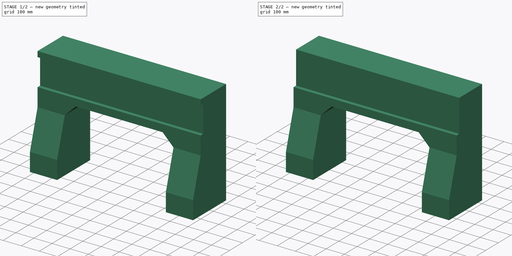
[diagram: build sequence overview — one tinted view per stage of 2, left to right]
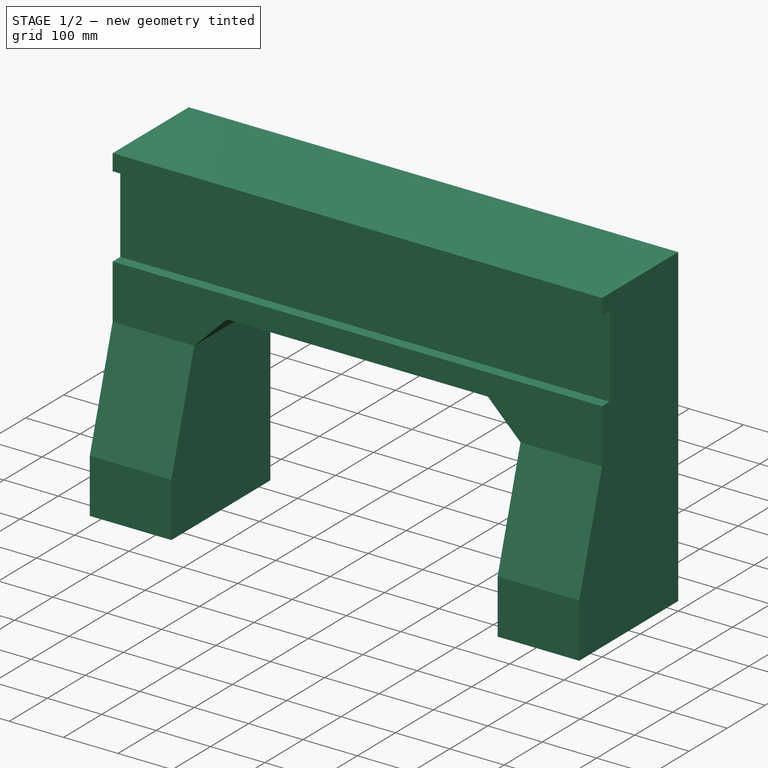
[diagram: stage 1 of 2 — iso view after this stage's code; geometry added in this stage tinted green]
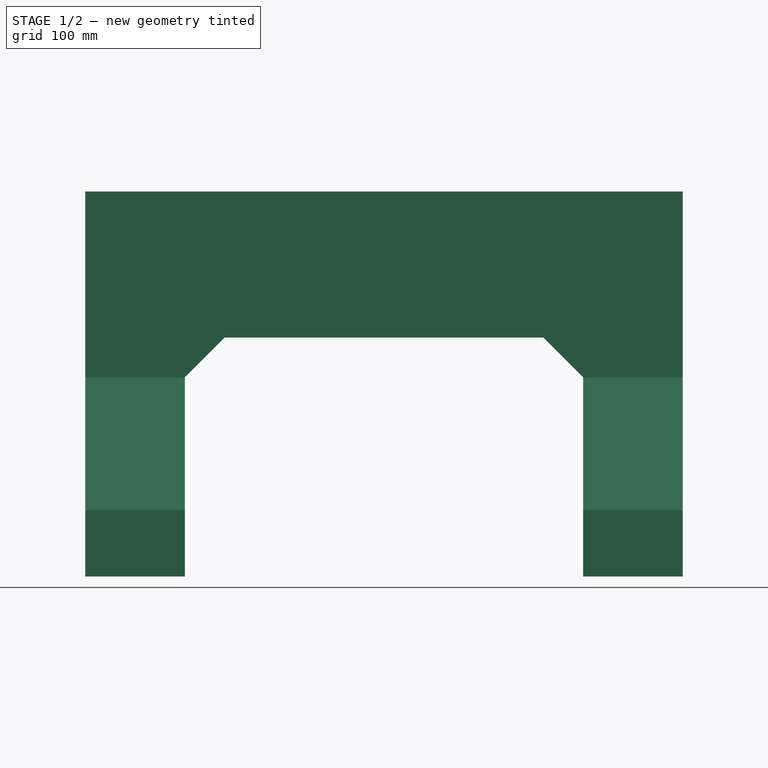
[diagram: stage 1 of 2 — front view after this stage's code; geometry added in this stage tinted green]
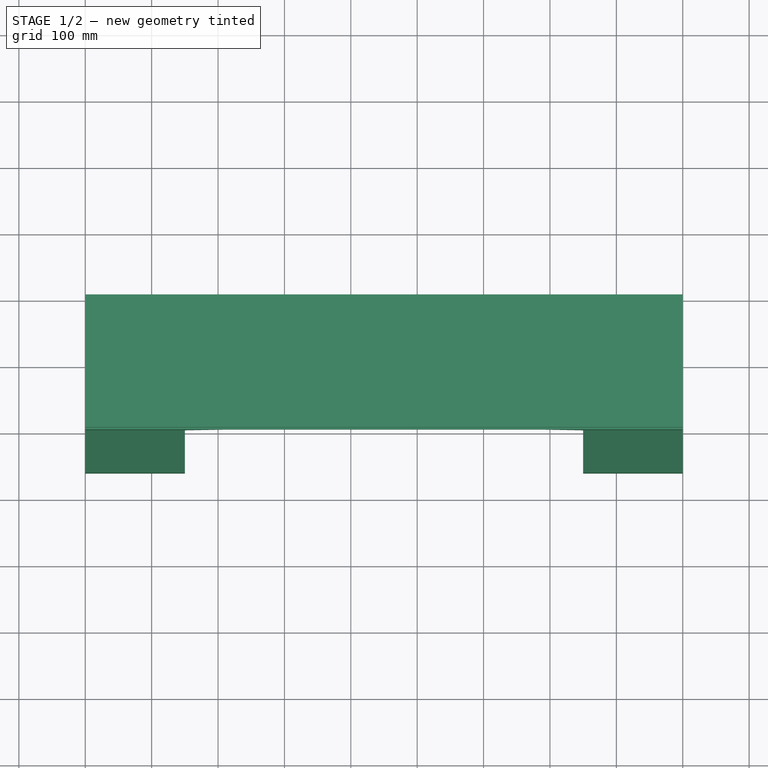
[diagram: stage 1 of 2 — top view after this stage's code; geometry added in this stage tinted green]
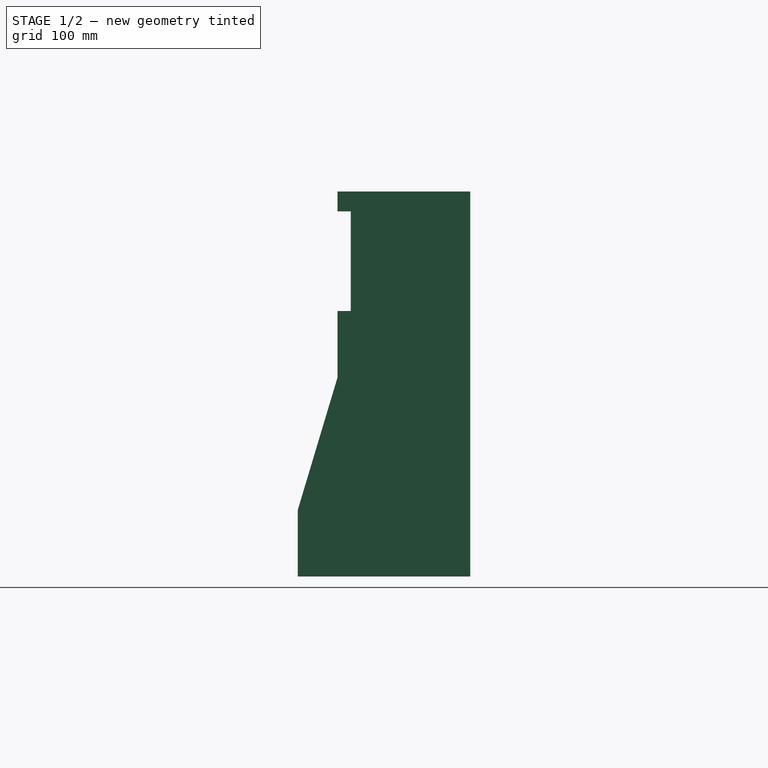
[diagram: stage 1 of 2 — right view after this stage's code; geometry added in this stage tinted green]
FCSTD DOCUMENT  (FreeCAD 1.0R39319 (Git))
Label: gantry
License: All rights reserved
LicenseURL: https://en.wikipedia.org/wiki/All_rights_reserved
objects: Sketcher::SketchObject×3, PartDesign::Pocket×2, PartDesign::Pad×1, PartDesign::Body×1
note: 16 computed .brp shape members not serialized (recipe doc carries the construction recipe); baked Part::Feature solids carry a one-line shape summary decoded from their .brp

FEATURE [Sketcher::SketchObject] Sketch
  ArcFitTolerance = 1e-06
  AttachmentSupport = -> [YZ_Plane]
  FullyConstrained = true
  MakeInternals = false
  MapMode = 5
  Placement = pos=(0,0,0) rot=(0.57735,0.57735,0.57735;2.0944rad)
  sketch-geometry (17):
    g0: LineSegment StartX=0 StartY=0 StartZ=0 EndX=200 EndY=0 EndZ=0
    g1: LineSegment StartX=200 StartY=0 StartZ=0 EndX=200 EndY=100 EndZ=0
    g2: LineSegment StartX=200 StartY=100 StartZ=0 EndX=0 EndY=100 EndZ=0
    g3: LineSegment StartX=0 StartY=100 StartZ=0 EndX=0 EndY=0 EndZ=0
    g4: LineSegment StartX=200 StartY=100 StartZ=0 EndX=200 EndY=250 EndZ=0
    g5: LineSegment StartX=200 StartY=250 StartZ=0 EndX=20 EndY=250 EndZ=0
    g6: LineSegment StartX=20 StartY=250 StartZ=0 EndX=20 EndY=100 EndZ=0
    g7: LineSegment StartX=20 StartY=100 StartZ=0 EndX=200 EndY=100 EndZ=0
    g8: LineSegment StartX=200 StartY=250 StartZ=0 EndX=200 EndY=280 EndZ=0
    g9: LineSegment StartX=200 StartY=280 StartZ=0 EndX=0 EndY=280 EndZ=0
    g10: LineSegment StartX=0 StartY=280 StartZ=0 EndX=0 EndY=250 EndZ=0
    g11: LineSegment StartX=0 StartY=250 StartZ=0 EndX=200 EndY=250 EndZ=0
    g12: LineSegment StartX=0 StartY=0 StartZ=0 EndX=200 EndY=0 EndZ=0
    g13: LineSegment StartX=200 StartY=0 StartZ=0 EndX=200 EndY=-300 EndZ=0
    g14: LineSegment StartX=200 StartY=-300 StartZ=0 EndX=-60 EndY=-300 EndZ=0
    g15: LineSegment StartX=-60 StartY=-300 StartZ=0 EndX=-60 EndY=-200 EndZ=0
    g16: LineSegment StartX=-60 StartY=-200 StartZ=0 EndX=0 EndY=0 EndZ=0
  constraints (46):
    c: Coincident(g0,g1)
    c: Coincident(g1,g2)
    c: Coincident(g2,g3)
    c: Coincident(g3,g0)
    c: Horizontal(g0)
    c: Horizontal(g2)
    c: Vertical(g1)
    c: Vertical(g3)
    c: Distance(g1,g3) = 200
    c: Distance(g0,g2) = 100
    c: Coincident(g0,g-1)
    c: Coincident(g4,g5)
    c: Coincident(g5,g6)
    c: Coincident(g6,g7)
    c: Coincident(g7,g4)
    c: Vertical(g4)
    c: Vertical(g6)
    c: Horizontal(g5)
    c: Horizontal(g7)
    c: Coincident(g4,g1)
    c: Coincident(g8,g9)
    c: Coincident(g9,g10)
    c: Coincident(g10,g11)
    c: Coincident(g11,g8)
    c: Vertical(g8)
    c: Vertical(g10)
    c: Horizontal(g9)
    c: Horizontal(g11)
    c: Coincident(g8,g4)
    c: PointOnObject(g9,g-2)
    c: Distance(g10,g10) = 30
    c: DistanceY(g6,g6) = 150
    c: DistanceX(g10,g5) = 20
    c: Coincident(g12,g0)
    c: Coincident(g12,g0)
    c: Coincident(g13,g0)
    c: Vertical(g13)
    c: Coincident(g14,g13)
    c: Horizontal(g14)
    c: Coincident(g15,g14)
    c: Vertical(g15)
    c: Coincident(g16,g15)
    c: Coincident(g16,g0)
    c: DistanceX(g14,g14) = 260
    c: DistanceY(g15,g15) = 100
    c: DistanceY(g13,g13) = 300
FEATURE [PartDesign::Pad] Pad
  Direction = (1,0,0)
  Length = 900
  Length2 = 10
  Placement = pos=(0,0,0) rot=(1,1,1;2.0944rad)
  Profile = -> Sketch
  ReferenceAxis = -> Sketch [N_Axis]
  Refine = true
  Suppressed = false
  Type = 0
FEATURE [Sketcher::SketchObject] Sketch001
  ArcFitTolerance = 1e-06
  AttachmentSupport = -> [Pad]
  ExternalGeometry = -> [Pad]
  FullyConstrained = false
  MakeInternals = false
  MapMode = 5
  Placement = pos=(0,0,0) rot=(0.57735,0.57735,-0.57735;2.0944rad)
  sketch-geometry (6):
    g0: LineSegment StartX=-1.67e-14 StartY=150 StartZ=0 EndX=494.351 EndY=150 EndZ=0
    g1: LineSegment StartX=494.351 StartY=150 StartZ=0 EndX=494.351 EndY=750 EndZ=0
    g2: LineSegment StartX=494.351 StartY=750 StartZ=0 EndX=5.68e-14 EndY=750 EndZ=0
    g3: LineSegment StartX=-1.67e-14 StartY=150 StartZ=0 EndX=-60 EndY=210 EndZ=0
    g4: LineSegment StartX=4.63e-14 StartY=750 StartZ=0 EndX=-60 EndY=690 EndZ=0
    g5: LineSegment StartX=-60 StartY=690 StartZ=0 EndX=-60 EndY=210 EndZ=0
  constraints (17):
    c: Coincident(g0,g1)
    c: Coincident(g1,g2)
    c: Horizontal(g0)
    c: Horizontal(g2)
    c: Vertical(g1)
    c: PointOnObject(g0,g-3)
    c: DistanceY(g-1,g0) = 150
    c: DistanceY(g2,g-5) = 150
    c: Coincident(g3,g0)
    c: Coincident(g4,g2)
    c: Coincident(g5,g4)
    c: Coincident(g5,g3)
    c: Vertical(g5)
    c: Equal(g3,g4)
    c: DistanceX(g3,g0) = 60
    c: Angle(g-3,g3) = 0.785398
    c: Angle(g5,g4) = 2.35619
FEATURE [PartDesign::Pocket] Pocket
  BaseFeature = -> Pad
  Direction = (0,1,0)
  Length = 49
  Length2 = 5
  Midplane = true
  Placement = pos=(0,0,0) rot=(1,1,1;2.0944rad)
  Profile = -> Sketch001
  ReferenceAxis = -> Sketch001 [N_Axis]
  Refine = true
  Suppressed = false
  Type = 1
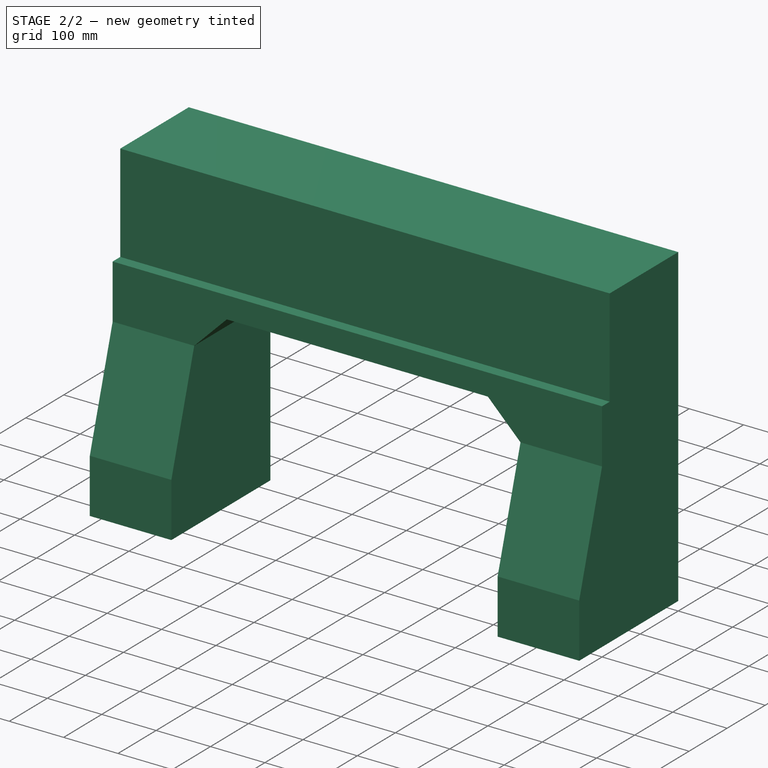
[diagram: stage 2 of 2 — iso view after this stage's code; geometry added in this stage tinted green]
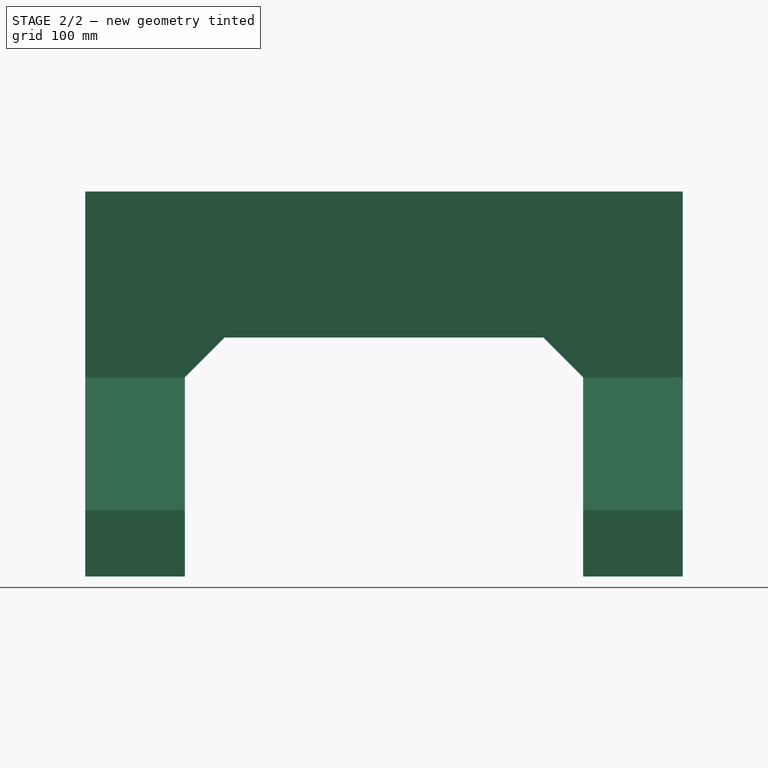
[diagram: stage 2 of 2 — front view after this stage's code; geometry added in this stage tinted green]
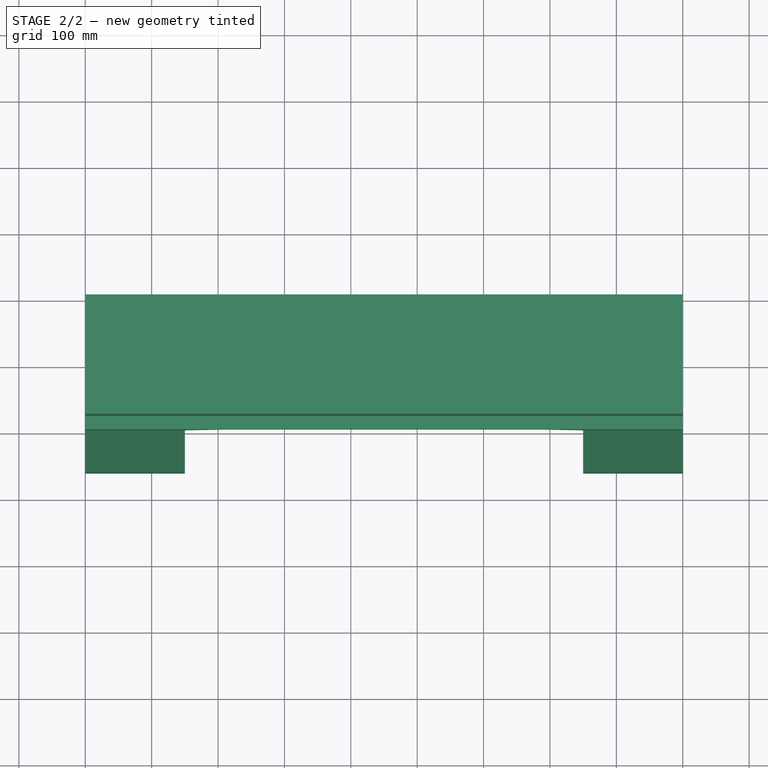
[diagram: stage 2 of 2 — top view after this stage's code; geometry added in this stage tinted green]
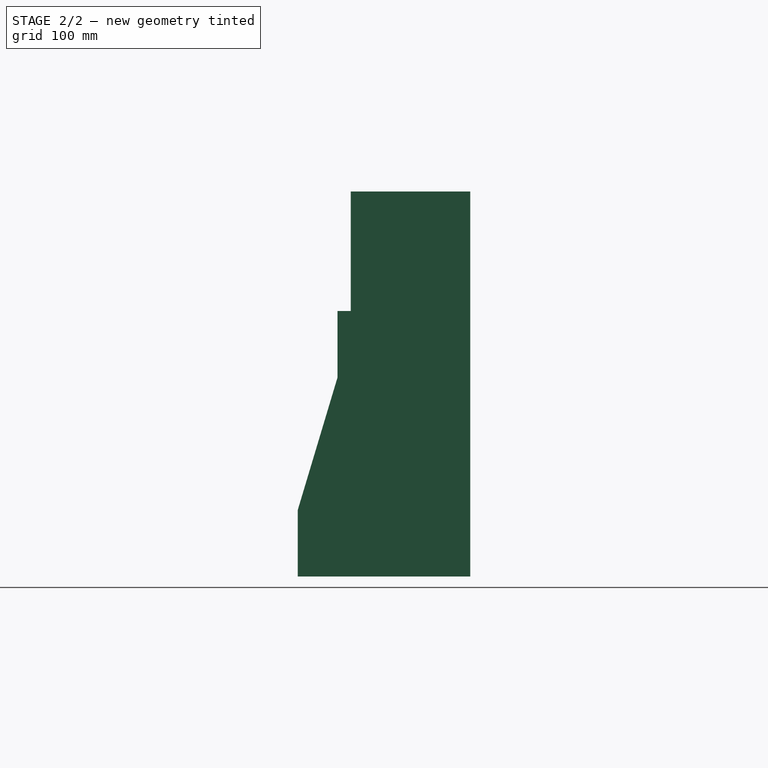
[diagram: stage 2 of 2 — right view after this stage's code; geometry added in this stage tinted green]
FEATURE [Sketcher::SketchObject] Sketch002
  ArcFitTolerance = 1e-06
  AttachmentSupport = -> [Pocket]
  ExternalGeometry = -> [Pocket]
  FullyConstrained = true
  MakeInternals = false
  MapMode = 5
  Placement = pos=(900,-3.997e-13,1.998e-13) rot=(0.57735,0.57735,0.57735;2.0944rad)
  sketch-geometry (4):
    g0: LineSegment StartX=20 StartY=250 StartZ=0 EndX=20 EndY=280 EndZ=0
    g1: LineSegment StartX=20 StartY=280 StartZ=0 EndX=0 EndY=280 EndZ=0
    g2: LineSegment StartX=0 StartY=280 StartZ=0 EndX=0 EndY=250 EndZ=0
    g3: LineSegment StartX=0 StartY=250 StartZ=0 EndX=20 EndY=250 EndZ=0
  constraints (10):
    c: Coincident(g0,g1)
    c: Coincident(g1,g2)
    c: Coincident(g2,g3)
    c: Coincident(g3,g0)
    c: Vertical(g0)
    c: Vertical(g2)
    c: Horizontal(g1)
    c: Horizontal(g3)
    c: Coincident(g0,g-4)
    c: Coincident(g1,g-3)
FEATURE [PartDesign::Pocket] Pocket001
  BaseFeature = -> Pocket
  Direction = (-1,0,0)
  Length = 5
  Length2 = 5
  Placement = pos=(0,0,0) rot=(1,1,1;2.0944rad)
  Profile = -> Sketch002
  ReferenceAxis = -> Sketch002 [N_Axis]
  Refine = true
  Suppressed = false
  Type = 1
FEATURE [PartDesign::Body] Body
  AllowCompound = false
  Group = -> [Sketch,Pad,Sketch001,Pocket,Sketch002,Pocket001]
  Origin = -> Origin
  Tip = -> Pocket001
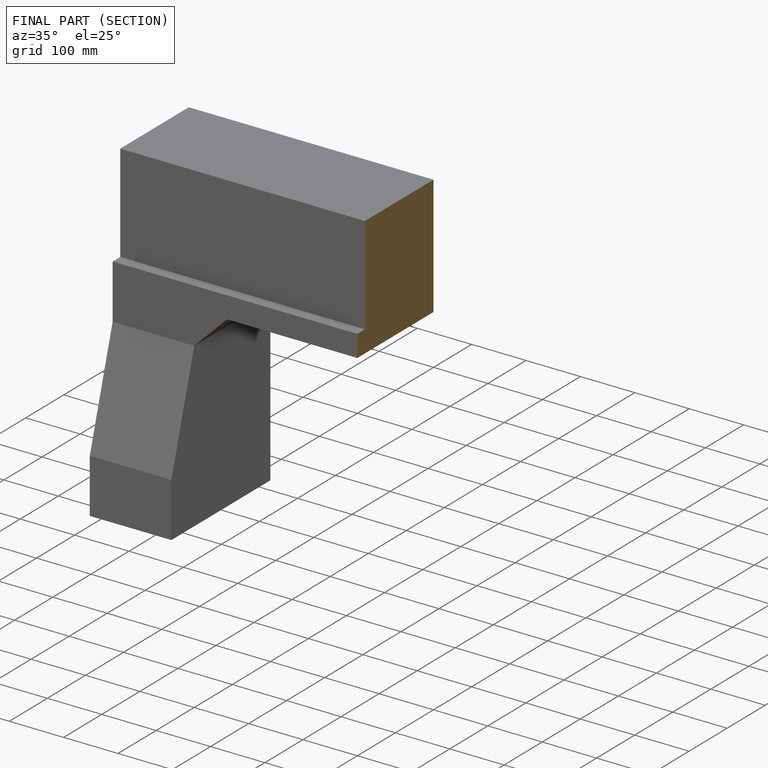
[diagram: finished part — half-section view (interior)]
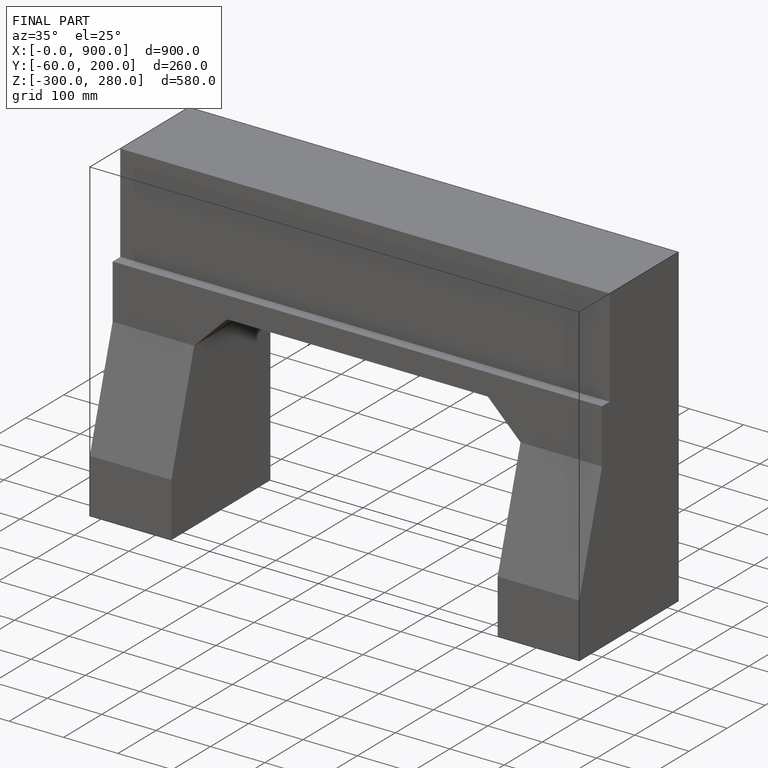
[diagram: finished part — iso view with bounding-box wireframe]
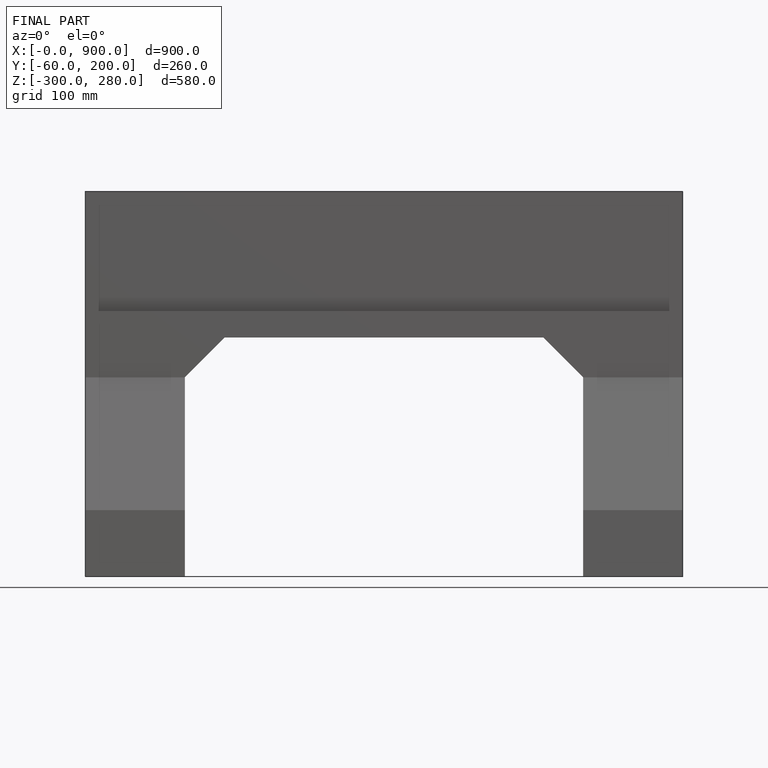
[diagram: finished part — front view with bounding-box wireframe]
